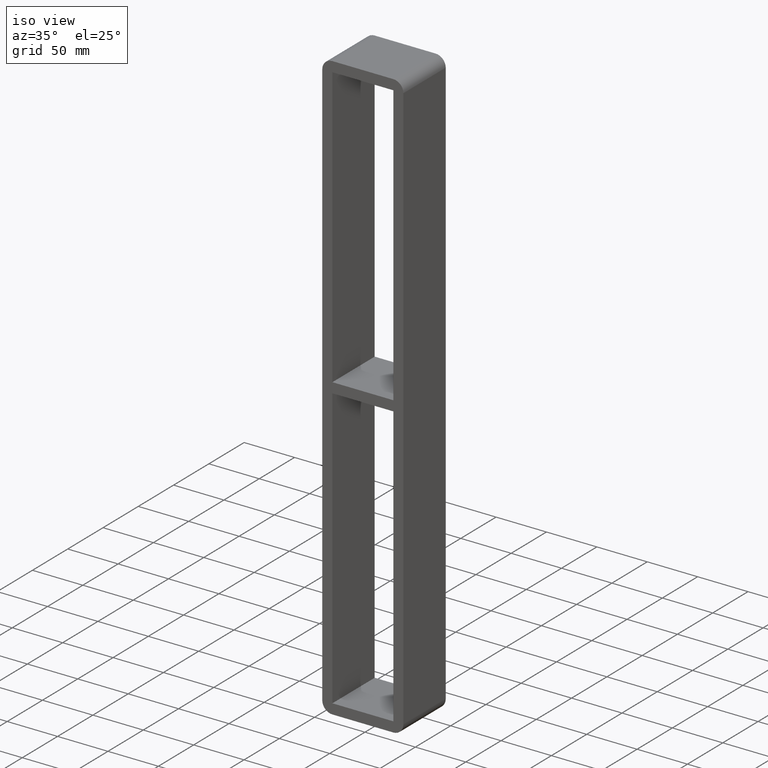
[diagram: clean part render]
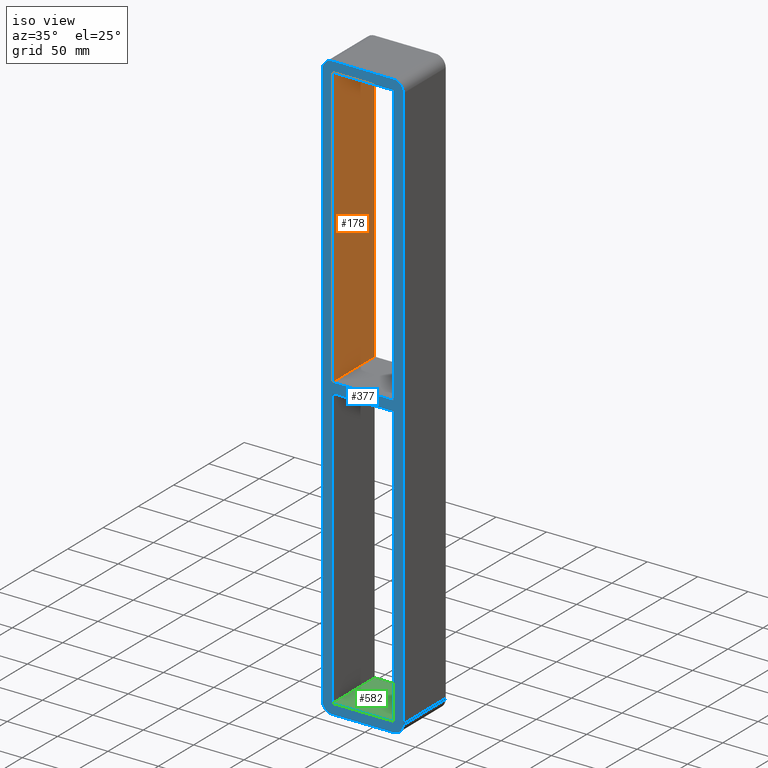
[diagram: same view with three faces highlighted in distinct colors, each labeled with its STEP entity id]
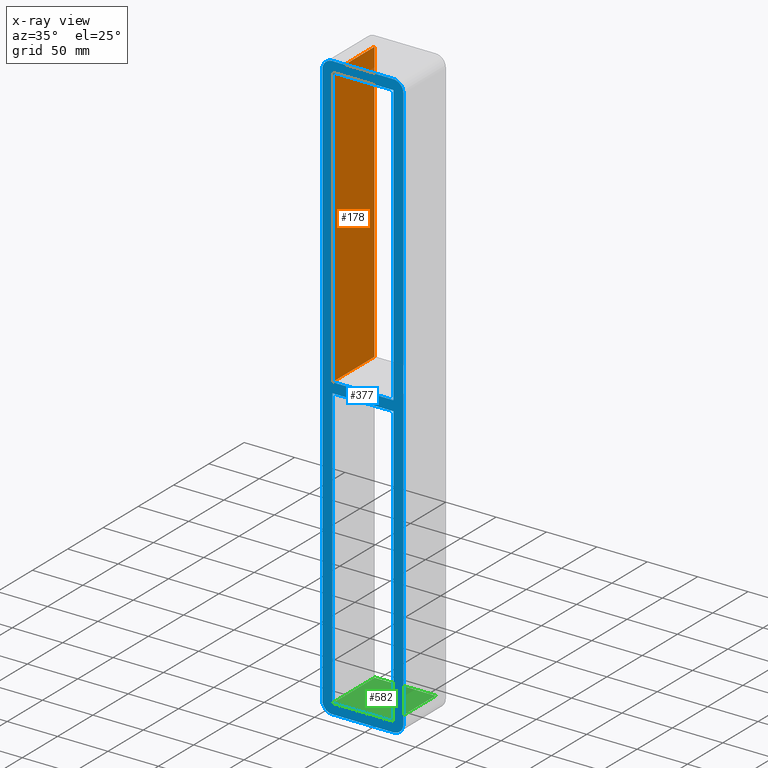
[diagram: x-ray of the same camera — body ghosted, the three highlighted faces saturated]
A machine part, iso view with three faces highlighted in distinct colors.
The next image is the same camera in x-ray (body ghosted, the three faces saturated) — at least one of them is partly hidden behind the body in this view.
Their STEP definitions:

[orange] entity #178 — the highlighted planar face has unit normal (-1, 0, 0).
#113=CARTESIAN_POINT('',(-30.249999999999702,-3.0,5.0));
#114=VERTEX_POINT('',#113);
#131=CARTESIAN_POINT('',(-30.249999999999702,57.0,5.0));
#132=VERTEX_POINT('',#131);
#139=CARTESIAN_POINT('',(-30.250000000000004,-3.0,5.0));
#140=DIRECTION('',(0.0,1.0,0.0));
#141=VECTOR('',#140,60.000000000000007);
#142=LINE('',#139,#141);
#143=EDGE_CURVE('',#114,#132,#142,.T.);
#148=CARTESIAN_POINT('',(-30.250000000000004,0.0,-283.0));
#149=DIRECTION('',(-1.0,0.0,0.0));
#150=DIRECTION('',(0.0,0.0,1.0));
#151=AXIS2_PLACEMENT_3D('',#148,#149,#150);
#152=PLANE('',#151);
#153=ORIENTED_EDGE('',*,*,#143,.T.);
#154=CARTESIAN_POINT('',(-30.250000000000007,57.0,283.0));
#155=VERTEX_POINT('',#154);
#156=CARTESIAN_POINT('',(-30.250000000000004,57.0,283.0));
#157=DIRECTION('',(0.0,0.0,-1.0));
#158=VECTOR('',#157,278.0);
#159=LINE('',#156,#158);
#160=EDGE_CURVE('',#155,#132,#159,.T.);
#161=ORIENTED_EDGE('',*,*,#160,.F.);
#162=CARTESIAN_POINT('',(-30.250000000000007,-3.0,283.0));
#163=VERTEX_POINT('',#162);
#164=CARTESIAN_POINT('',(-30.250000000000004,-3.0,283.0));
#165=DIRECTION('',(0.0,1.0,0.0));
#166=VECTOR('',#165,60.0);
#167=LINE('',#164,#166);
#168=EDGE_CURVE('',#163,#155,#167,.T.);
#169=ORIENTED_EDGE('',*,*,#168,.F.);
#170=CARTESIAN_POINT('',(-30.250000000000004,-3.0,5.0));
#171=DIRECTION('',(0.0,0.0,1.0));
#172=VECTOR('',#171,278.0);
#173=LINE('',#170,#172);
#174=EDGE_CURVE('',#114,#163,#173,.T.);
#175=ORIENTED_EDGE('',*,*,#174,.F.);
#176=EDGE_LOOP('',(#153,#161,#169,#175));
#177=FACE_OUTER_BOUND('',#176,.T.);
#178=ADVANCED_FACE('',(#177),#152,.F.);

[blue] entity #377 — the highlighted planar face has unit normal (0, 1, 0).
#73=CARTESIAN_POINT('',(30.249999999996362,-3.0,-5.00000000000936));
#74=VERTEX_POINT('',#73);
#75=CARTESIAN_POINT('',(-30.249999999999702,-3.0,-5.000000000009379));
#76=VERTEX_POINT('',#75);
#77=CARTESIAN_POINT('',(30.249999999996362,-3.0,-5.00000000000936));
#78=DIRECTION('',(-1.0,0.0,0.0));
#79=VECTOR('',#78,60.499999999996064);
#80=LINE('',#77,#79);
#81=EDGE_CURVE('',#74,#76,#80,.T.);
#113=CARTESIAN_POINT('',(-30.249999999999702,-3.0,5.0));
#114=VERTEX_POINT('',#113);
#115=CARTESIAN_POINT('',(30.249999999999897,-3.0,5.0));
#116=VERTEX_POINT('',#115);
#117=CARTESIAN_POINT('',(-30.249999999999702,-3.0,5.0));
#118=DIRECTION('',(1.0,0.0,0.0));
#119=VECTOR('',#118,60.499999999999602);
#120=LINE('',#117,#119);
#121=EDGE_CURVE('',#114,#116,#120,.T.);
#162=CARTESIAN_POINT('',(-30.250000000000007,-3.0,283.0));
#163=VERTEX_POINT('',#162);
#170=CARTESIAN_POINT('',(-30.250000000000004,-3.0,5.0));
#171=DIRECTION('',(0.0,0.0,1.0));
#172=VECTOR('',#171,278.0);
#173=LINE('',#170,#172);
#174=EDGE_CURVE('',#114,#163,#173,.T.);
#193=CARTESIAN_POINT('',(30.25,-3.0,-283.0));
#194=VERTEX_POINT('',#193);
#201=CARTESIAN_POINT('',(30.25,-3.0,-5.000000000009351));
#202=DIRECTION('',(0.0,0.0,-1.0));
#203=VECTOR('',#202,277.99999999999068);
#204=LINE('',#201,#203);
#205=EDGE_CURVE('',#74,#194,#204,.T.);
#216=CARTESIAN_POINT('',(30.25,-3.0,283.0));
#217=VERTEX_POINT('',#216);
#218=CARTESIAN_POINT('',(30.25,-3.0,283.0));
#219=DIRECTION('',(0.0,0.0,-1.0));
#220=VECTOR('',#219,278.0);
#221=LINE('',#218,#220);
#222=EDGE_CURVE('',#217,#116,#221,.T.);
#257=CARTESIAN_POINT('',(40.25,-3.0,-283.0));
#258=VERTEX_POINT('',#257);
#265=CARTESIAN_POINT('',(30.250000000000004,-3.0,-293.0));
#266=VERTEX_POINT('',#265);
#267=CARTESIAN_POINT('',(30.250000000000004,-3.0,-283.0));
#268=DIRECTION('',(0.0,1.0,0.0));
#269=DIRECTION('',(0.707106781186547,0.0,-0.707106781186547));
#270=AXIS2_PLACEMENT_3D('',#267,#268,#269);
#271=CIRCLE('',#270,9.999999999999998);
#272=EDGE_CURVE('',#258,#266,#271,.T.);
#283=CARTESIAN_POINT('',(0.0,-3.0,1.918945E-014));
#284=DIRECTION('',(0.0,1.0,0.0));
#285=DIRECTION('',(0.0,0.0,1.0));
#286=AXIS2_PLACEMENT_3D('',#283,#284,#285);
#287=PLANE('',#286);
#288=ORIENTED_EDGE('',*,*,#272,.F.);
#289=CARTESIAN_POINT('',(40.25,-3.0,283.0));
#290=VERTEX_POINT('',#289);
#291=CARTESIAN_POINT('',(40.25,-3.0,-283.0));
#292=DIRECTION('',(0.0,0.0,1.0));
#293=VECTOR('',#292,566.0);
#294=LINE('',#291,#293);
#295=EDGE_CURVE('',#258,#290,#294,.T.);
#296=ORIENTED_EDGE('',*,*,#295,.T.);
#297=CARTESIAN_POINT('',(30.250000000000004,-3.0,293.0));
#298=VERTEX_POINT('',#297);
#299=CARTESIAN_POINT('',(30.250000000000004,-3.0,283.0));
#300=DIRECTION('',(0.0,1.0,0.0));
#301=DIRECTION('',(0.707106781186547,0.0,0.707106781186547));
#302=AXIS2_PLACEMENT_3D('',#299,#300,#301);
#303=CIRCLE('',#302,9.999999999999998);
#304=EDGE_CURVE('',#298,#290,#303,.T.);
#305=ORIENTED_EDGE('',*,*,#304,.F.);
#306=CARTESIAN_POINT('',(-30.250000000000004,-3.0,293.0));
#307=VERTEX_POINT('',#306);
#308=CARTESIAN_POINT('',(30.25,-3.0,293.0));
#309=DIRECTION('',(-1.0,0.0,0.0));
#310=VECTOR('',#309,60.5);
#311=LINE('',#308,#310);
#312=EDGE_CURVE('',#298,#307,#311,.T.);
#313=ORIENTED_EDGE('',*,*,#312,.T.);
#314=CARTESIAN_POINT('',(-40.25,-3.0,283.0));
#315=VERTEX_POINT('',#314);
#316=CARTESIAN_POINT('',(-30.250000000000004,-3.0,283.0));
#317=DIRECTION('',(0.0,1.0,0.0));
#318=DIRECTION('',(-0.707106781186547,0.0,0.707106781186547));
#319=AXIS2_PLACEMENT_3D('',#316,#317,#318);
#320=CIRCLE('',#319,9.999999999999998);
#321=EDGE_CURVE('',#315,#307,#320,.T.);
#322=ORIENTED_EDGE('',*,*,#321,.F.);
#323=CARTESIAN_POINT('',(-40.25,-3.0,-283.0));
#324=VERTEX_POINT('',#323);
#325=CARTESIAN_POINT('',(-40.25,-3.0,283.00000000000006));
#326=DIRECTION('',(0.0,0.0,-1.0));
#327=VECTOR('',#326,566.0);
#328=LINE('',#325,#327);
#329=EDGE_CURVE('',#315,#324,#328,.T.);
#330=ORIENTED_EDGE('',*,*,#329,.T.);
#331=CARTESIAN_POINT('',(-30.250000000000004,-3.0,-293.0));
#332=VERTEX_POINT('',#331);
#333=CARTESIAN_POINT('',(-30.250000000000004,-3.0,-283.0));
#334=DIRECTION('',(0.0,1.0,0.0));
#335=DIRECTION('',(-0.707106781186547,0.0,-0.707106781186547));
#336=AXIS2_PLACEMENT_3D('',#333,#334,#335);
#337=CIRCLE('',#336,9.999999999999998);
#338=EDGE_CURVE('',#332,#324,#337,.T.);
#339=ORIENTED_EDGE('',*,*,#338,.F.);
#340=CARTESIAN_POINT('',(-30.25,-3.0,-293.0));
#341=DIRECTION('',(1.0,0.0,0.0));
#342=VECTOR('',#341,60.5);
#343=LINE('',#340,#342);
#344=EDGE_CURVE('',#332,#266,#343,.T.);
#345=ORIENTED_EDGE('',*,*,#344,.T.);
#346=EDGE_LOOP('',(#288,#296,#305,#313,#322,#330,#339,#345));
#347=FACE_OUTER_BOUND('',#346,.T.);
#348=ORIENTED_EDGE('',*,*,#174,.T.);
#349=CARTESIAN_POINT('',(-30.250000000000007,-3.0,283.0));
#350=DIRECTION('',(1.0,0.0,0.0));
#351=VECTOR('',#350,60.500000000000007);
#352=LINE('',#349,#351);
#353=EDGE_CURVE('',#163,#217,#352,.T.);
#354=ORIENTED_EDGE('',*,*,#353,.T.);
#355=ORIENTED_EDGE('',*,*,#222,.T.);
#356=ORIENTED_EDGE('',*,*,#121,.F.);
#357=EDGE_LOOP('',(#348,#354,#355,#356));
#358=FACE_BOUND('',#357,.T.);
#359=ORIENTED_EDGE('',*,*,#81,.F.);
#360=ORIENTED_EDGE('',*,*,#205,.T.);
#361=CARTESIAN_POINT('',(-30.250000000000007,-3.0,-283.0));
#362=VERTEX_POINT('',#361);
#363=CARTESIAN_POINT('',(30.25,-3.0,-283.0));
#364=DIRECTION('',(-1.0,0.0,0.0));
#365=VECTOR('',#364,60.500000000000007);
#366=LINE('',#363,#365);
#367=EDGE_CURVE('',#194,#362,#366,.T.);
#368=ORIENTED_EDGE('',*,*,#367,.T.);
#369=CARTESIAN_POINT('',(-30.250000000000004,-3.0,-283.0));
#370=DIRECTION('',(0.0,0.0,1.0));
#371=VECTOR('',#370,277.99999999999062);
#372=LINE('',#369,#371);
#373=EDGE_CURVE('',#362,#76,#372,.T.);
#374=ORIENTED_EDGE('',*,*,#373,.T.);
#375=EDGE_LOOP('',(#359,#360,#368,#374));
#376=FACE_BOUND('',#375,.T.);
#377=ADVANCED_FACE('',(#347,#358,#376),#287,.F.);

[green] entity #582 — the highlighted planar face has unit normal (0, 0, -1).
#185=CARTESIAN_POINT('',(30.25,57.0,-283.0));
#186=VERTEX_POINT('',#185);
#193=CARTESIAN_POINT('',(30.25,-3.0,-283.0));
#194=VERTEX_POINT('',#193);
#195=CARTESIAN_POINT('',(30.25,57.0,-283.0));
#196=DIRECTION('',(0.0,-1.0,0.0));
#197=VECTOR('',#196,60.0);
#198=LINE('',#195,#197);
#199=EDGE_CURVE('',#186,#194,#198,.T.);
#361=CARTESIAN_POINT('',(-30.250000000000007,-3.0,-283.0));
#362=VERTEX_POINT('',#361);
#363=CARTESIAN_POINT('',(30.25,-3.0,-283.0));
#364=DIRECTION('',(-1.0,0.0,0.0));
#365=VECTOR('',#364,60.500000000000007);
#366=LINE('',#363,#365);
#367=EDGE_CURVE('',#194,#362,#366,.T.);
#549=CARTESIAN_POINT('',(-30.250000000000007,57.0,-283.0));
#550=VERTEX_POINT('',#549);
#551=CARTESIAN_POINT('',(-30.250000000000004,-3.0,-283.0));
#552=DIRECTION('',(0.0,1.0,0.0));
#553=VECTOR('',#552,60.0);
#554=LINE('',#551,#553);
#555=EDGE_CURVE('',#362,#550,#554,.T.);
#566=CARTESIAN_POINT('',(30.25,0.0,-283.0));
#567=DIRECTION('',(0.0,0.0,-1.0));
#568=DIRECTION('',(-1.0,0.0,0.0));
#569=AXIS2_PLACEMENT_3D('',#566,#567,#568);
#570=PLANE('',#569);
#571=ORIENTED_EDGE('',*,*,#555,.F.);
#572=ORIENTED_EDGE('',*,*,#367,.F.);
#573=ORIENTED_EDGE('',*,*,#199,.F.);
#574=CARTESIAN_POINT('',(-30.250000000000007,57.0,-283.0));
#575=DIRECTION('',(1.0,0.0,0.0));
#576=VECTOR('',#575,60.500000000000007);
#577=LINE('',#574,#576);
#578=EDGE_CURVE('',#550,#186,#577,.T.);
#579=ORIENTED_EDGE('',*,*,#578,.F.);
#580=EDGE_LOOP('',(#571,#572,#573,#579));
#581=FACE_OUTER_BOUND('',#580,.T.);
#582=ADVANCED_FACE('',(#581),#570,.F.);